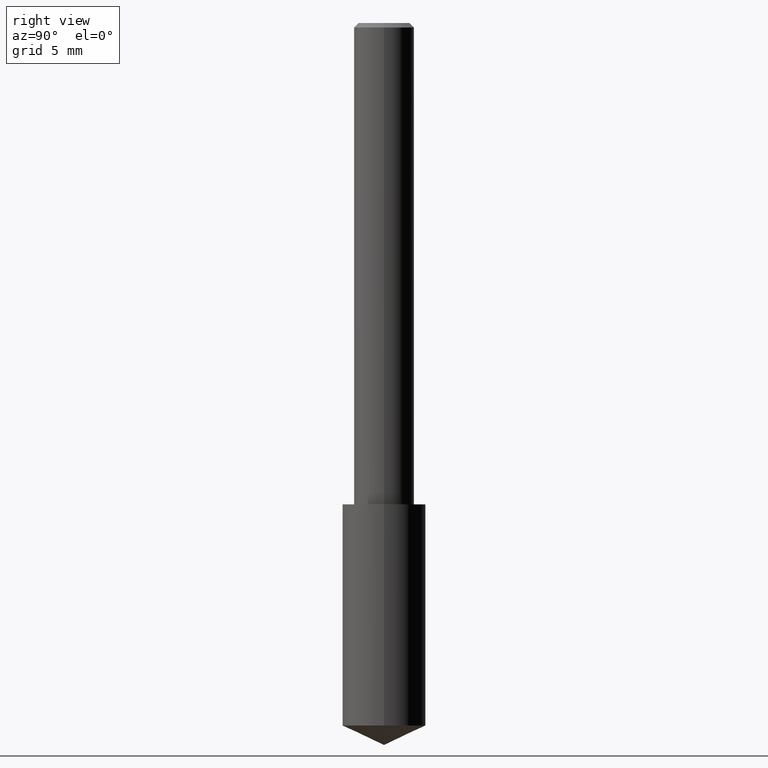
[diagram: clean part render]
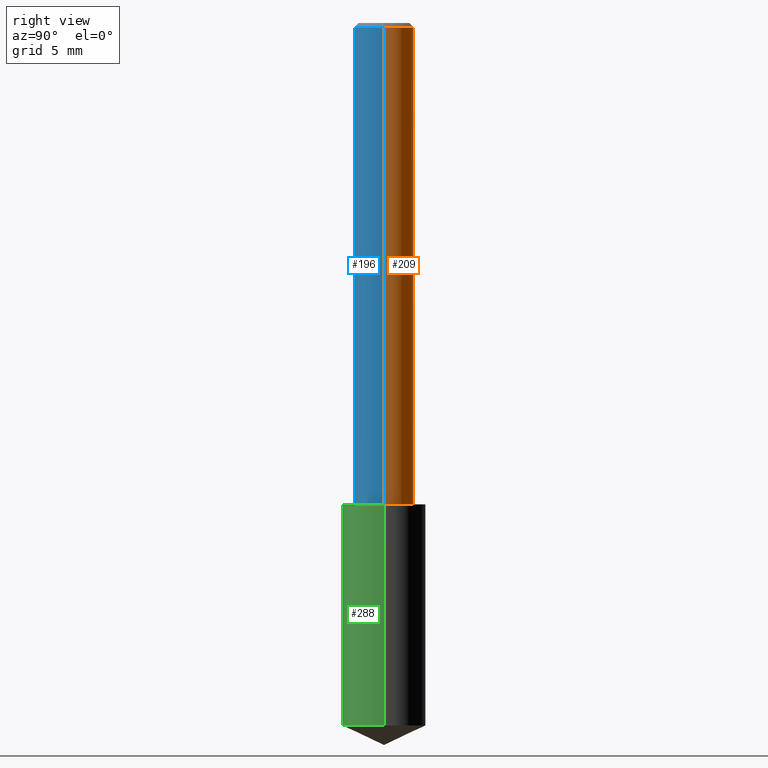
[diagram: same view with three faces highlighted in distinct colors, each labeled with its STEP entity id]
A machine part, right view with three faces highlighted in distinct colors.
Their STEP definitions:

[orange] entity #209 — the highlighted cylindrical surface (edge-blend (fillet) strip) has radius 1.5875 mm, axis along (-0, 0, 1).
#8 = DIRECTION ( 'NONE',  ( -2.445468806185136597E-29, 3.491481338843145583E-15, 1.000000000000000000 ) ) ;
#17 = AXIS2_PLACEMENT_3D ( 'NONE', #275, #233, #205 ) ;
#29 = ORIENTED_EDGE ( 'NONE', *, *, #293, .T. ) ;
#32 = VECTOR ( 'NONE', #91, 39.37007874015748143 ) ;
#35 = AXIS2_PLACEMENT_3D ( 'NONE', #124, #93, #235 ) ;
#36 = CARTESIAN_POINT ( 'NONE',  ( 0.06250000000000006939, -4.364351673553921624E-16, 3.047610484872463374E-30 ) ) ;
#37 = CARTESIAN_POINT ( 'NONE',  ( -0.06250000000000006939, 4.440892098500631092E-16, -3.074334431409319267E-30 ) ) ;
#44 = AXIS2_PLACEMENT_3D ( 'NONE', #104, #8, #255 ) ;
#68 = LINE ( 'NONE', #36, #32 ) ;
#78 = CARTESIAN_POINT ( 'NONE',  ( 0.06250000000000012490, -3.927916506198539224E-15, -1.000000000000000222 ) ) ;
#79 = ORIENTED_EDGE ( 'NONE', *, *, #311, .F. ) ;
#86 = CIRCLE ( 'NONE', #44, 0.06250000000000012490 ) ;
#91 = DIRECTION ( 'NONE',  ( -2.445468806185136877E-29, 3.491481338843145188E-15, 1.000000000000000000 ) ) ;
#93 = DIRECTION ( 'NONE',  ( -2.445468806185136597E-29, 3.491481338843145583E-15, 1.000000000000000000 ) ) ;
#104 = CARTESIAN_POINT ( 'NONE',  ( 2.445468806185137438E-29, -3.491481338843146371E-15, -1.000000000000000222 ) ) ;
#108 = ORIENTED_EDGE ( 'NONE', *, *, #149, .T. ) ;
#124 = CARTESIAN_POINT ( 'NONE',  ( 2.292627005798582375E-31, -3.273263755165472650E-17, -0.009375000000000067307 ) ) ;
#141 = VERTEX_POINT ( 'NONE', #78 ) ;
#149 = EDGE_CURVE ( 'NONE', #141, #256, #86, .T. ) ;
#154 = CARTESIAN_POINT ( 'NONE',  ( -0.06250000000000012490, -1.318017778347335489E-15, -1.000000000000000222 ) ) ;
#157 = EDGE_LOOP ( 'NONE', ( #108, #29, #320, #79 ) ) ;
#178 = CYLINDRICAL_SURFACE ( 'NONE', #17, 0.06250000000000006939 ) ;
#180 = CARTESIAN_POINT ( 'NONE',  ( 0.06250000000000000000, -4.691678049070464390E-16, -0.009375000000000067307 ) ) ;
#181 = FACE_OUTER_BOUND ( 'NONE', #157, .T. ) ;
#199 = VECTOR ( 'NONE', #329, 39.37007874015748143 ) ;
#204 = LINE ( 'NONE', #37, #199 ) ;
#205 = DIRECTION ( 'NONE',  ( 1.000000000000000000, -6.982962677686266711E-15, 4.876176775795935793E-29 ) ) ;
#209 = ADVANCED_FACE ( 'NONE', ( #181 ), #178, .T. ) ;
#223 = EDGE_CURVE ( 'NONE', #316, #297, #302, .T. ) ;
#233 = DIRECTION ( 'NONE',  ( -2.445468806185136597E-29, 3.491481338843145583E-15, 1.000000000000000000 ) ) ;
#235 = DIRECTION ( 'NONE',  ( 1.000000000000000000, -6.982962677686266711E-15, 0.000000000000000000 ) ) ;
#255 = DIRECTION ( 'NONE',  ( 1.000000000000000000, -6.982962677686264344E-15, 0.000000000000000000 ) ) ;
#256 = VERTEX_POINT ( 'NONE', #154 ) ;
#275 = CARTESIAN_POINT ( 'NONE',  ( 0.000000000000000000, 0.000000000000000000, 0.000000000000000000 ) ) ;
#293 = EDGE_CURVE ( 'NONE', #256, #297, #204, .T. ) ;
#297 = VERTEX_POINT ( 'NONE', #304 ) ;
#302 = CIRCLE ( 'NONE', #35, 0.06250000000000000000 ) ;
#304 = CARTESIAN_POINT ( 'NONE',  ( -0.06250000000000000000, -1.318017778347336672E-15, -0.009375000000000067307 ) ) ;
#311 = EDGE_CURVE ( 'NONE', #141, #316, #68, .T. ) ;
#316 = VERTEX_POINT ( 'NONE', #180 ) ;
#320 = ORIENTED_EDGE ( 'NONE', *, *, #223, .F. ) ;
#329 = DIRECTION ( 'NONE',  ( -2.445468806185136877E-29, 3.491481338843145188E-15, 1.000000000000000000 ) ) ;

[blue] entity #196 — the highlighted cylindrical surface (edge-blend (fillet) strip) has radius 1.5875 mm, axis along (-0, 0, 1).
#3 = CIRCLE ( 'NONE', #252, 0.06250000000000012490 ) ;
#4 = CARTESIAN_POINT ( 'NONE',  ( 2.292627005798582375E-31, -3.273263755165472650E-17, -0.009375000000000067307 ) ) ;
#26 = DIRECTION ( 'NONE',  ( 1.000000000000000000, -6.982962677686264344E-15, 0.000000000000000000 ) ) ;
#32 = VECTOR ( 'NONE', #91, 39.37007874015748143 ) ;
#36 = CARTESIAN_POINT ( 'NONE',  ( 0.06250000000000006939, -4.364351673553921624E-16, 3.047610484872463374E-30 ) ) ;
#37 = CARTESIAN_POINT ( 'NONE',  ( -0.06250000000000006939, 4.440892098500631092E-16, -3.074334431409319267E-30 ) ) ;
#52 = DIRECTION ( 'NONE',  ( -2.445468806185136597E-29, 3.491481338843145583E-15, 1.000000000000000000 ) ) ;
#58 = ORIENTED_EDGE ( 'NONE', *, *, #293, .F. ) ;
#59 = ORIENTED_EDGE ( 'NONE', *, *, #100, .T. ) ;
#68 = LINE ( 'NONE', #36, #32 ) ;
#73 = DIRECTION ( 'NONE',  ( 1.000000000000000000, -6.982962677686266711E-15, 4.876176775795935793E-29 ) ) ;
#78 = CARTESIAN_POINT ( 'NONE',  ( 0.06250000000000012490, -3.927916506198539224E-15, -1.000000000000000222 ) ) ;
#91 = DIRECTION ( 'NONE',  ( -2.445468806185136877E-29, 3.491481338843145188E-15, 1.000000000000000000 ) ) ;
#100 = EDGE_CURVE ( 'NONE', #256, #141, #3, .T. ) ;
#101 = CYLINDRICAL_SURFACE ( 'NONE', #257, 0.06250000000000006939 ) ;
#110 = CARTESIAN_POINT ( 'NONE',  ( 2.445468806185137438E-29, -3.491481338843146371E-15, -1.000000000000000222 ) ) ;
#111 = CIRCLE ( 'NONE', #268, 0.06250000000000000000 ) ;
#113 = EDGE_CURVE ( 'NONE', #297, #316, #111, .T. ) ;
#139 = DIRECTION ( 'NONE',  ( -2.445468806185136597E-29, 3.491481338843145583E-15, 1.000000000000000000 ) ) ;
#141 = VERTEX_POINT ( 'NONE', #78 ) ;
#154 = CARTESIAN_POINT ( 'NONE',  ( -0.06250000000000012490, -1.318017778347335489E-15, -1.000000000000000222 ) ) ;
#162 = ORIENTED_EDGE ( 'NONE', *, *, #311, .T. ) ;
#180 = CARTESIAN_POINT ( 'NONE',  ( 0.06250000000000000000, -4.691678049070464390E-16, -0.009375000000000067307 ) ) ;
#190 = DIRECTION ( 'NONE',  ( 1.000000000000000000, -6.982962677686266711E-15, 0.000000000000000000 ) ) ;
#196 = ADVANCED_FACE ( 'NONE', ( #338 ), #101, .T. ) ;
#199 = VECTOR ( 'NONE', #329, 39.37007874015748143 ) ;
#204 = LINE ( 'NONE', #37, #199 ) ;
#207 = CARTESIAN_POINT ( 'NONE',  ( 0.000000000000000000, 0.000000000000000000, 0.000000000000000000 ) ) ;
#252 = AXIS2_PLACEMENT_3D ( 'NONE', #110, #52, #26 ) ;
#256 = VERTEX_POINT ( 'NONE', #154 ) ;
#257 = AXIS2_PLACEMENT_3D ( 'NONE', #207, #306, #73 ) ;
#261 = EDGE_LOOP ( 'NONE', ( #58, #59, #162, #265 ) ) ;
#265 = ORIENTED_EDGE ( 'NONE', *, *, #113, .F. ) ;
#268 = AXIS2_PLACEMENT_3D ( 'NONE', #4, #139, #190 ) ;
#293 = EDGE_CURVE ( 'NONE', #256, #297, #204, .T. ) ;
#297 = VERTEX_POINT ( 'NONE', #304 ) ;
#304 = CARTESIAN_POINT ( 'NONE',  ( -0.06250000000000000000, -1.318017778347336672E-15, -0.009375000000000067307 ) ) ;
#306 = DIRECTION ( 'NONE',  ( -2.445468806185136597E-29, 3.491481338843145583E-15, 1.000000000000000000 ) ) ;
#311 = EDGE_CURVE ( 'NONE', #141, #316, #68, .T. ) ;
#316 = VERTEX_POINT ( 'NONE', #180 ) ;
#329 = DIRECTION ( 'NONE',  ( -2.445468806185136877E-29, 3.491481338843145188E-15, 1.000000000000000000 ) ) ;
#338 = FACE_OUTER_BOUND ( 'NONE', #261, .T. ) ;

[green] entity #288 — the highlighted cylindrical surface (partial cylindrical patch) has radius 2.1996 mm, axis along (-0, 0, 1).
#13 = VERTEX_POINT ( 'NONE', #303 ) ;
#24 = VECTOR ( 'NONE', #243, 39.37007874015748143 ) ;
#34 = EDGE_CURVE ( 'NONE', #246, #179, #98, .T. ) ;
#39 = FACE_OUTER_BOUND ( 'NONE', #168, .T. ) ;
#41 = CARTESIAN_POINT ( 'NONE',  ( 3.569449693217560249E-29, -5.096228159724480781E-15, -1.459617756803777144 ) ) ;
#42 = EDGE_CURVE ( 'NONE', #194, #179, #326, .T. ) ;
#56 = CARTESIAN_POINT ( 'NONE',  ( -0.08659999999999998255, -3.678524740115566939E-15, -1.000000000000000222 ) ) ;
#85 = EDGE_CURVE ( 'NONE', #13, #246, #224, .T. ) ;
#98 = LINE ( 'NONE', #206, #321 ) ;
#105 = ORIENTED_EDGE ( 'NONE', *, *, #130, .F. ) ;
#128 = CARTESIAN_POINT ( 'NONE',  ( -0.08659999999999998255, -2.876151329674899932E-15, -1.000000000000000222 ) ) ;
#130 = EDGE_CURVE ( 'NONE', #13, #194, #240, .T. ) ;
#143 = ORIENTED_EDGE ( 'NONE', *, *, #34, .T. ) ;
#146 = DIRECTION ( 'NONE',  ( -2.445468806185136597E-29, 3.491481338843145583E-15, 1.000000000000000000 ) ) ;
#167 = ORIENTED_EDGE ( 'NONE', *, *, #42, .F. ) ;
#168 = EDGE_LOOP ( 'NONE', ( #105, #187, #143, #167 ) ) ;
#171 = DIRECTION ( 'NONE',  ( -2.445468806185136877E-29, 3.491481338843145188E-15, 1.000000000000000000 ) ) ;
#179 = VERTEX_POINT ( 'NONE', #285 ) ;
#187 = ORIENTED_EDGE ( 'NONE', *, *, #85, .T. ) ;
#193 = CYLINDRICAL_SURFACE ( 'NONE', #231, 0.08659999999999998255 ) ;
#194 = VERTEX_POINT ( 'NONE', #56 ) ;
#206 = CARTESIAN_POINT ( 'NONE',  ( 0.08659999999999998255, -4.096205906730777690E-15, -1.000000000000000222 ) ) ;
#224 = CIRCLE ( 'NONE', #225, 0.08659999999999998255 ) ;
#225 = AXIS2_PLACEMENT_3D ( 'NONE', #41, #277, #254 ) ;
#231 = AXIS2_PLACEMENT_3D ( 'NONE', #312, #308, #287 ) ;
#240 = LINE ( 'NONE', #128, #24 ) ;
#243 = DIRECTION ( 'NONE',  ( -2.445468806185136877E-29, 3.491481338843145188E-15, 1.000000000000000000 ) ) ;
#245 = AXIS2_PLACEMENT_3D ( 'NONE', #298, #146, #248 ) ;
#246 = VERTEX_POINT ( 'NONE', #337 ) ;
#248 = DIRECTION ( 'NONE',  ( 1.000000000000000000, -6.982962677686269866E-15, 0.000000000000000000 ) ) ;
#254 = DIRECTION ( 'NONE',  ( 1.000000000000000000, -6.982962677686269866E-15, 0.000000000000000000 ) ) ;
#277 = DIRECTION ( 'NONE',  ( -2.445468806185136597E-29, 3.491481338843145583E-15, 1.000000000000000000 ) ) ;
#285 = CARTESIAN_POINT ( 'NONE',  ( 0.08659999999999998255, -4.096205906730776901E-15, -1.000000000000000222 ) ) ;
#287 = DIRECTION ( 'NONE',  ( 1.000000000000000000, -6.982962677686269866E-15, 0.000000000000000000 ) ) ;
#288 = ADVANCED_FACE ( 'NONE', ( #39 ), #193, .T. ) ;
#298 = CARTESIAN_POINT ( 'NONE',  ( 2.445468806185136877E-29, -3.491481338843145977E-15, -1.000000000000000222 ) ) ;
#303 = CARTESIAN_POINT ( 'NONE',  ( -0.08660000000000001030, -4.480898150556233158E-15, -1.459617756803777144 ) ) ;
#308 = DIRECTION ( 'NONE',  ( -2.445468806185136597E-29, 3.491481338843145583E-15, 1.000000000000000000 ) ) ;
#312 = CARTESIAN_POINT ( 'NONE',  ( 2.445468806185137438E-29, -3.491481338843146371E-15, -1.000000000000000222 ) ) ;
#321 = VECTOR ( 'NONE', #171, 39.37007874015748143 ) ;
#326 = CIRCLE ( 'NONE', #245, 0.08659999999999998255 ) ;
#337 = CARTESIAN_POINT ( 'NONE',  ( 0.08660000000000001030, -5.700952727612111706E-15, -1.459617756803777144 ) ) ;